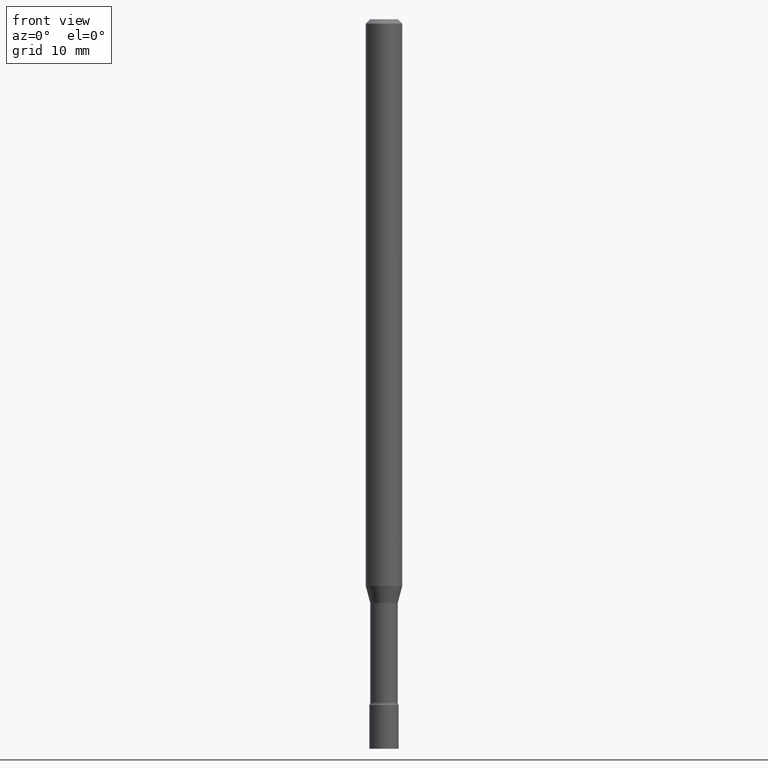
[diagram: clean part render]
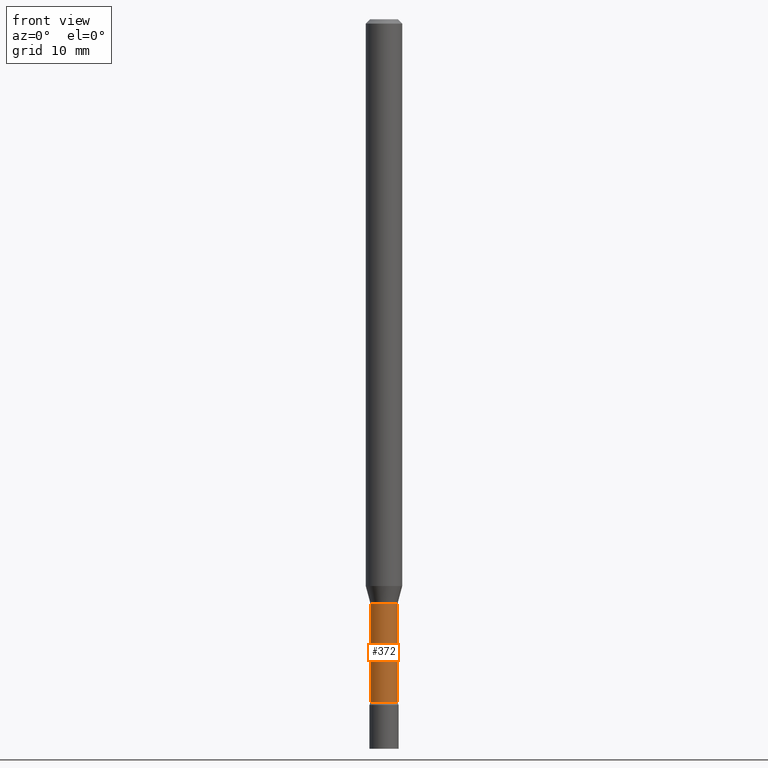
[diagram: same view with one face highlighted and labeled with its STEP entity id]
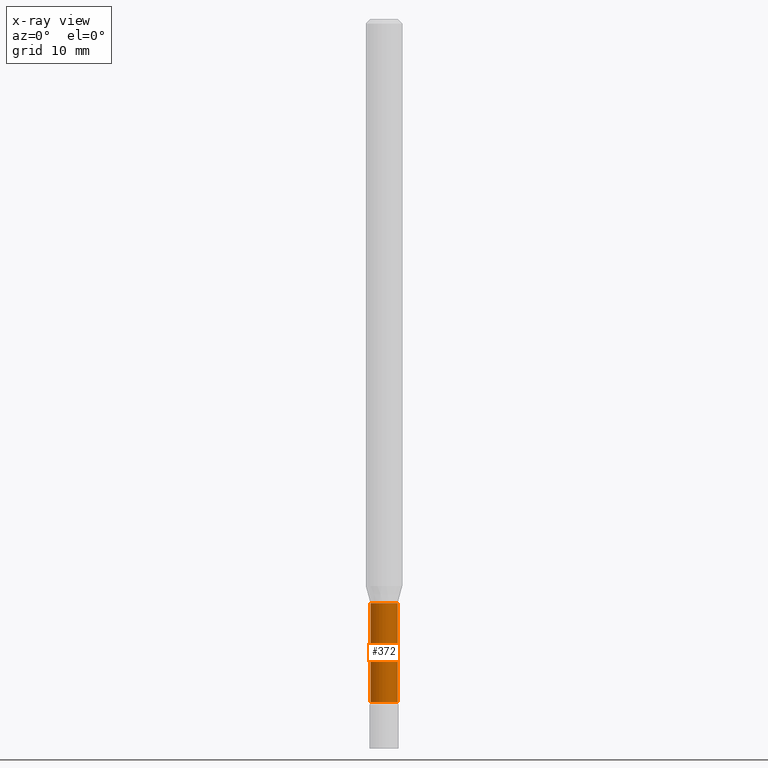
[diagram: x-ray of the same camera — body ghosted, the highlighted face saturated]
A machine part, front view. The second image highlights one B-rep face of the part: STEP entity #372.
The next image is the same camera in x-ray: the body ghosted, the highlighted face saturated — about 0% of this face is hidden behind the body in this view.
In plain terms, the highlighted cylindrical surface (edge-blend (fillet) strip) has radius 1.1938 mm, axis along (-0, 0, 1).
Its self-contained STEP definition (entity closure, byte-faithful):
#16 = EDGE_CURVE ( 'NONE', #489, #515, #391, .T. ) ;
#17 = DIRECTION ( 'NONE',  ( 1.000000000000000000, -6.982962677686269866E-15, 0.000000000000000000 ) ) ;
#32 = VERTEX_POINT ( 'NONE', #374 ) ;
#35 = DIRECTION ( 'NONE',  ( 1.000000000000000000, -6.982962677686266711E-15, 4.876176775795936353E-29 ) ) ;
#36 = EDGE_CURVE ( 'NONE', #32, #397, #54, .T. ) ;
#44 = CARTESIAN_POINT ( 'NONE',  ( 0.000000000000000000, 0.000000000000000000, 0.000000000000000000 ) ) ;
#54 = CIRCLE ( 'NONE', #345, 0.04699999999999998623 ) ;
#58 = CARTESIAN_POINT ( 'NONE',  ( 0.04700000000000000705, -7.318056857115623393E-15, -2.001974787463811190 ) ) ;
#66 = CARTESIAN_POINT ( 'NONE',  ( 0.04699999999999999317, -3.281992458512545038E-16, 2.291803084624089879E-30 ) ) ;
#74 = DIRECTION ( 'NONE',  ( -2.445468806185136597E-29, 3.491481338843145583E-15, 1.000000000000000000 ) ) ;
#78 = AXIS2_PLACEMENT_3D ( 'NONE', #44, #74, #35 ) ;
#92 = DIRECTION ( 'NONE',  ( -2.445468806185136877E-29, 3.491481338843145188E-15, 1.000000000000000000 ) ) ;
#113 = CARTESIAN_POINT ( 'NONE',  ( 0.04699999999999998623, -8.501757060083058435E-15, -2.341000000000000192 ) ) ;
#116 = VECTOR ( 'NONE', #92, 39.37007874015748143 ) ;
#121 = EDGE_CURVE ( 'NONE', #32, #489, #457, .T. ) ;
#144 = ORIENTED_EDGE ( 'NONE', *, *, #36, .T. ) ;
#169 = CARTESIAN_POINT ( 'NONE',  ( 5.724842475279404612E-29, -8.173557814231803142E-15, -2.341000000000000192 ) ) ;
#170 = DIRECTION ( 'NONE',  ( -2.445468806185136597E-29, 3.491481338843145583E-15, 1.000000000000000000 ) ) ;
#235 = CYLINDRICAL_SURFACE ( 'NONE', #78, 0.04699999999999999317 ) ;
#236 = ORIENTED_EDGE ( 'NONE', *, *, #16, .F. ) ;
#260 = ORIENTED_EDGE ( 'NONE', *, *, #310, .T. ) ;
#285 = AXIS2_PLACEMENT_3D ( 'NONE', #368, #170, #17 ) ;
#310 = EDGE_CURVE ( 'NONE', #397, #515, #387, .T. ) ;
#330 = CARTESIAN_POINT ( 'NONE',  ( -0.04699999999999999317, 3.339550858072470388E-16, -2.311899492419805370E-30 ) ) ;
#338 = DIRECTION ( 'NONE',  ( -2.445468806185136877E-29, 3.491481338843145188E-15, 1.000000000000000000 ) ) ;
#345 = AXIS2_PLACEMENT_3D ( 'NONE', #169, #464, #501 ) ;
#363 = VECTOR ( 'NONE', #338, 39.37007874015748143 ) ;
#368 = CARTESIAN_POINT ( 'NONE',  ( 4.895766893511868006E-29, -6.989857611264368100E-15, -2.001974787463811190 ) ) ;
#372 = ADVANCED_FACE ( 'NONE', ( #481 ), #235, .T. ) ;
#374 = CARTESIAN_POINT ( 'NONE',  ( -0.04699999999999998623, -7.844656253412948961E-15, -2.341000000000000192 ) ) ;
#387 = LINE ( 'NONE', #66, #363 ) ;
#391 = CIRCLE ( 'NONE', #285, 0.04700000000000000705 ) ;
#397 = VERTEX_POINT ( 'NONE', #113 ) ;
#419 = CARTESIAN_POINT ( 'NONE',  ( -0.04700000000000000705, -7.247752626940839815E-15, -2.001974787463811190 ) ) ;
#431 = ORIENTED_EDGE ( 'NONE', *, *, #121, .F. ) ;
#457 = LINE ( 'NONE', #330, #116 ) ;
#464 = DIRECTION ( 'NONE',  ( -2.445468806185136597E-29, 3.491481338843145583E-15, 1.000000000000000000 ) ) ;
#481 = FACE_OUTER_BOUND ( 'NONE', #510, .T. ) ;
#489 = VERTEX_POINT ( 'NONE', #419 ) ;
#501 = DIRECTION ( 'NONE',  ( 1.000000000000000000, -6.982962677686273021E-15, 0.000000000000000000 ) ) ;
#510 = EDGE_LOOP ( 'NONE', ( #431, #144, #260, #236 ) ) ;
#515 = VERTEX_POINT ( 'NONE', #58 ) ;